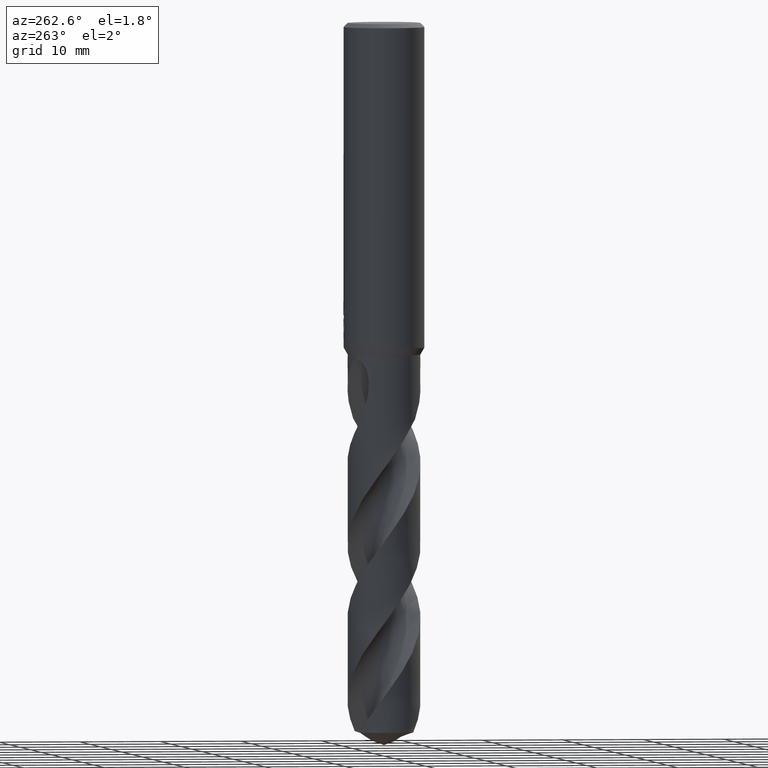
[diagram: clean part render]
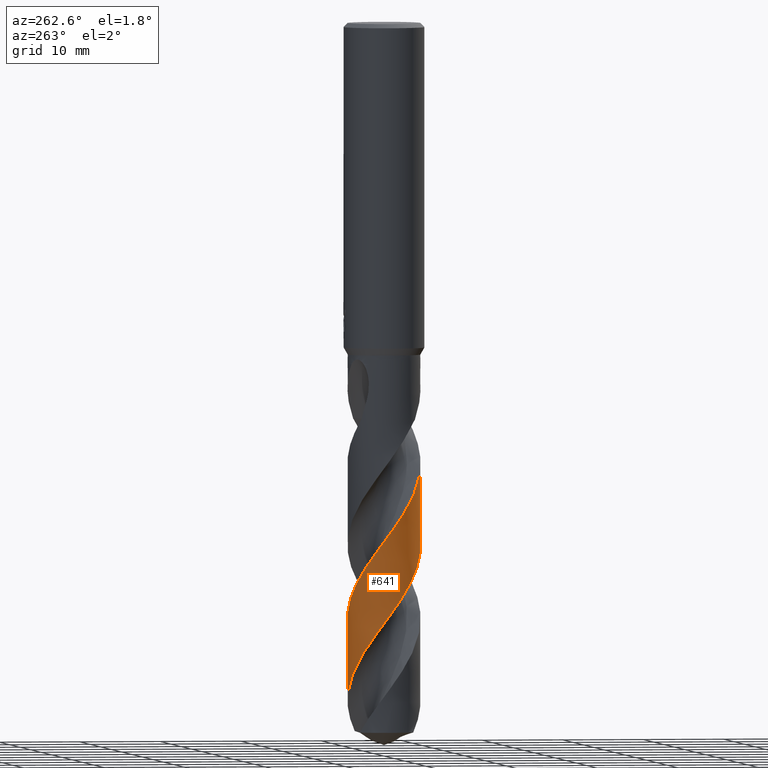
[diagram: same view with one face highlighted and labeled with its STEP entity id]
A machine part, auxiliary view. The second image highlights one B-rep face of the part: STEP entity #641.
In plain terms, the highlighted conical surface has half-angle 0 deg.
Its self-contained STEP definition (entity closure, byte-faithful):
#293=VERTEX_POINT('',#789);
#343=EDGE_CURVE('',#631,#735,#843,.T.);
#455=EDGE_CURVE('',#665,#631,#963,.T.);
#627=EDGE_CURVE('',#735,#293,#1155,.T.);
#631=VERTEX_POINT('',#1159);
#641=ADVANCED_FACE('',(#1170),#1171,.T.);
#665=VERTEX_POINT('',#1198);
#727=EDGE_CURVE('',#293,#665,#1266,.T.);
#735=VERTEX_POINT('',#1274);
#789=CARTESIAN_POINT('',(-4.78452782545262E-013,-4.49992534134538,-53.4953750419703));
#843=B_SPLINE_CURVE_WITH_KNOTS('',3,(#1715,#1716,#1717,#1718,#1719,#1720,#1721,#1722,#1723,#1724,#1725,#1726,#1727,#1728,#1729,#1730,#1731,#1732,#1733,#1734,#1735,#1736,#1737,#1738,#1739,#1740,#1741,#1742,#1743,#1744,#1745,#1746,#1747,#1748,#1749,#1750,#1751,#1752,#1753,#1754,#1755,#1756,#1757,#1758,#1759,#1760,#1761,#1762,#1763,#1764,#1765,#1766,#1767,#1768,#1769,#1770,#1771,#1772,#1773,#1774,#1775,#1776,#1777,#1778,#1779,#1780,#1781,#1782,#1783,#1784,#1785,#1786,#1787,#1788,#1789,#1790,#1791,#1792,#1793,#1794),.UNSPECIFIED.,.F.,.F.,(4,2,2,2,2,2,2,2,2,2,2,2,2,2,2,2,2,2,2,2,2,2,2,2,2,2,2,2,2,2,2,2,2,2,2,2,2,2,2,4),(0.0,2.33680212377957,3.27924067551566,5.45922298406233,6.51468084761761,7.75993380819906,10.2223819340773,10.8330407916629,13.2978420661797,13.8876874497238,16.3592074030605,17.349162844891,19.5602718468744,20.1418046346869,22.6210732071348,23.496812256514,25.9745628110826,26.5889139295122,29.0682129147522,29.6639591988363,32.1502937223343,33.2488865367003,35.4222711966253,35.9610805510369,38.3763465433414,39.6140868550911,40.1277455289277,40.6099100932209,42.4074824584705,43.3430638700968,43.8766262820531,45.7315283011536,46.9512835155706,48.305281477593,48.9765393567973,49.4547912362447,49.8859614607023,50.442557883741,51.5745962522468,53.3377781698529),.UNSPECIFIED.);
#963=LINE('',#3659,#3660);
#1155=LINE('',#4806,#4807);
#1159=CARTESIAN_POINT('',(1.21588158932353E-014,4.49998967546559,-82.6787048212013));
#1170=FACE_OUTER_BOUND('',#4838,.T.);
#1171=CONICAL_SURFACE('',#4839,4.49995,2.20448182881086E-006);
#1198=CARTESIAN_POINT('',(-4.71657272157943E-015,4.49996747261341,-72.6070172730486));
#1266=B_SPLINE_CURVE_WITH_KNOTS('',3,(#5139,#5140,#5141,#5142,#5143,#5144,#5145,#5146,#5147,#5148,#5149,#5150,#5151,#5152,#5153,#5154,#5155,#5156,#5157,#5158,#5159,#5160,#5161,#5162,#5163,#5164,#5165,#5166,#5167,#5168,#5169,#5170,#5171,#5172,#5173,#5174,#5175,#5176,#5177,#5178,#5179,#5180,#5181,#5182,#5183,#5184,#5185,#5186,#5187,#5188,#5189,#5190,#5191,#5192,#5193,#5194,#5195,#5196,#5197,#5198,#5199,#5200,#5201,#5202,#5203,#5204,#5205,#5206,#5207,#5208,#5209,#5210,#5211,#5212,#5213,#5214,#5215,#5216,#5217,#5218,#5219,#5220,#5221,#5222,#5223,#5224,#5225,#5226,#5227,#5228,#5229,#5230),.UNSPECIFIED.,.F.,.F.,(4,2,2,2,2,2,2,2,2,2,2,2,2,2,2,2,2,2,2,2,2,2,2,2,2,2,2,2,2,2,2,2,2,2,2,2,2,2,2,2,2,2,2,2,2,4),(0.0,0.186837903831747,0.303060575486544,0.370177943563527,0.861059292617235,1.03366132974205,1.1444361306066,1.24868724846205,1.38874266653107,1.54454257318178,1.58485242890453,2.16989544355807,2.55907528289923,2.9515630851444,3.37161299936185,4.52186147595583,5.05269922730908,7.48727273301139,8.10399733752969,9.34060571961746,9.48730890678113,11.0891192293209,13.5788625091689,14.8125525260481,16.0436994481211,18.6294355339242,19.0542804417132,20.6879567547197,21.9317961791301,21.9807795358462,24.802878485986,25.2510834182851,26.8041700987059,29.2919276600639,30.525883345021,31.7529372328043,33.6201010355565,34.8491716611566,37.4317258425612,37.8536020730467,39.4823253270607,41.6293292643649,43.2294483616723,44.4325228181478,46.2472490038725,48.071826279848),.UNSPECIFIED.);
#1274=CARTESIAN_POINT('',(-3.5251749755537E-014,-4.49994754214657,-63.566132204404));
#1715=CARTESIAN_POINT('',(3.13168728307313,3.23149110489847,-87.3621339458021));
#1716=CARTESIAN_POINT('',(2.79986246731276,3.55306566640095,-86.7350611161615));
#1717=CARTESIAN_POINT('',(2.41931807309393,3.82268708230373,-86.1100701324407));
#1718=CARTESIAN_POINT('',(1.83521490573001,4.11303866035091,-85.2321782920329));
#1719=CARTESIAN_POINT('',(1.66238672864993,4.1858675261564,-84.9805730812409));
#1720=CARTESIAN_POINT('',(1.07677590188494,4.39068345700471,-84.1441869583712));
#1721=CARTESIAN_POINT('',(0.649912613710216,4.47380377987986,-83.556103020175));
#1722=CARTESIAN_POINT('',(0.00820596892831227,4.50486006252403,-82.6893897186134));
#1723=CARTESIAN_POINT('',(-0.201551838525929,4.50035240013233,-82.4076885816891));
#1724=CARTESIAN_POINT('',(-0.656338477719899,4.45872265768239,-81.7913076280781));
#1725=CARTESIAN_POINT('',(-0.899759713002763,4.41598606174388,-81.4559597118791));
#1726=CARTESIAN_POINT('',(-1.60900419243431,4.23060357095004,-80.4626726154881));
#1727=CARTESIAN_POINT('',(-2.05647264057087,4.03201262037635,-79.8159416198085));
#1728=CARTESIAN_POINT('',(-2.56422063107079,3.69988404570603,-78.9928933459382));
#1729=CARTESIAN_POINT('',(-2.6622839562254,3.62996306032753,-78.8288730259041));
#1730=CARTESIAN_POINT('',(-3.14245992196279,3.25759390881083,-78.0047503269377));
#1731=CARTESIAN_POINT('',(-3.47612275414777,2.89885543339306,-77.3573854387337));
#1732=CARTESIAN_POINT('',(-3.81044267801213,2.3966401227769,-76.5396649092122));
#1733=CARTESIAN_POINT('',(-3.87107699568782,2.29740409898074,-76.3813128306896));
#1734=CARTESIAN_POINT('',(-4.16557102935763,1.77063979067803,-75.5622536163271));
#1735=CARTESIAN_POINT('',(-4.33269859749133,1.30963322557204,-74.9141332539911));
#1736=CARTESIAN_POINT('',(-4.45870752003181,0.638585773960807,-73.9895309654832));
#1737=CARTESIAN_POINT('',(-4.48219750214839,0.444767207797544,-73.7238507890458));
#1738=CARTESIAN_POINT('',(-4.51725135435534,-0.186108605963501,-72.8685592344404));
#1739=CARTESIAN_POINT('',(-4.47793975500949,-0.62273858714686,-72.2872030997307));
#1740=CARTESIAN_POINT('',(-4.34986485190763,-1.15823474869505,-71.5411555064887));
#1741=CARTESIAN_POINT('',(-4.31900576862883,-1.26843951364272,-71.3853530651335));
#1742=CARTESIAN_POINT('',(-4.13486313179622,-1.84121499979803,-70.5684914943904));
#1743=CARTESIAN_POINT('',(-3.91135241412223,-2.27793264539385,-69.9199800395209));
#1744=CARTESIAN_POINT('',(-3.51955768118954,-2.80927833694773,-69.0263261781374));
#1745=CARTESIAN_POINT('',(-3.40962166975117,-2.94172111005351,-68.7920206902992));
#1746=CARTESIAN_POINT('',(-2.96041463255488,-3.42382843495597,-67.8989225115384));
#1747=CARTESIAN_POINT('',(-2.57324029820633,-3.72350383945732,-67.2520858456997));
#1748=CARTESIAN_POINT('',(-2.03985363980248,-4.01286904217065,-66.4289347220988));
#1749=CARTESIAN_POINT('',(-1.93176186406089,-4.06601010315414,-66.2649190472735));
#1750=CARTESIAN_POINT('',(-1.37612452684524,-4.31195852432005,-65.4408826805211));
#1751=CARTESIAN_POINT('',(-0.90204816812503,-4.43540219332056,-64.7935880461949));
#1752=CARTESIAN_POINT('',(-0.300933059100268,-4.49139792613305,-63.9752865141356));
#1753=CARTESIAN_POINT('',(-0.184344989660074,-4.49768614146036,-63.8162966180381));
#1754=CARTESIAN_POINT('',(0.419597046200159,-4.5067589413106,-62.9965458077784));
#1755=CARTESIAN_POINT('',(0.90471495347332,-4.43493967238463,-62.3483412336419));
#1756=CARTESIAN_POINT('',(1.57434769598337,-4.2210567706603,-61.3963771170168));
#1757=CARTESIAN_POINT('',(1.77463719559898,-4.14085889628439,-61.1029747277798));
#1758=CARTESIAN_POINT('',(2.35259428818417,-3.85966710901864,-60.2337434581259));
#1759=CARTESIAN_POINT('',(2.70760906428429,-3.61935756054024,-59.6649545191824));
#1760=CARTESIAN_POINT('',(3.10134885916392,-3.26224204947324,-58.9440123426183));
#1761=CARTESIAN_POINT('',(3.17687734235426,-3.18872874867644,-58.8004275070547));
#1762=CARTESIAN_POINT('',(3.57655471518116,-2.77143677296827,-58.015712207655));
#1763=CARTESIAN_POINT('',(3.84787318018934,-2.38066697466544,-57.3859510762865));
#1764=CARTESIAN_POINT('',(4.15891917637846,-1.73542002685983,-56.4181523308605));
#1765=CARTESIAN_POINT('',(4.24635773626587,-1.50884866098144,-56.0888337656626));
#1766=CARTESIAN_POINT('',(4.34367496789276,-1.17982395982694,-55.6247336876066));
#1767=CARTESIAN_POINT('',(4.36897565848088,-1.08238239713843,-55.4887476319327));
#1768=CARTESIAN_POINT('',(4.41165487526204,-0.891959406216048,-55.224911510925));
#1769=CARTESIAN_POINT('',(4.42940716378236,-0.79914463540748,-55.0970814172397));
#1770=CARTESIAN_POINT('',(4.49945327728565,-0.358117816268624,-54.4931126875725));
#1771=CARTESIAN_POINT('',(4.51371200920096,-0.00482608144987512,-54.0190920094939));
#1772=CARTESIAN_POINT('',(4.47241709698118,0.529599547149978,-53.2953507262848));
#1773=CARTESIAN_POINT('',(4.44713638938276,0.7111010213112,-53.0484010536984));
#1774=CARTESIAN_POINT('',(4.39039322306057,0.992275846143304,-52.6584419094299));
#1775=CARTESIAN_POINT('',(4.36638825589952,1.09305539956104,-52.5166987850063));
#1776=CARTESIAN_POINT('',(4.24297826211391,1.54176907233344,-51.8837695165584));
#1777=CARTESIAN_POINT('',(4.12615192870768,1.80517760819183,-51.5058887469233));
#1778=CARTESIAN_POINT('',(3.9912032083572,2.08194598803022,-51.1007770420934));
#1779=CARTESIAN_POINT('',(3.93395325196989,2.18800413751013,-50.9399713530244));
#1780=CARTESIAN_POINT('',(3.80656122285731,2.40347732009148,-50.5956510693471));
#1781=CARTESIAN_POINT('',(3.73641468979566,2.51076376178733,-50.4135005836646));
#1782=CARTESIAN_POINT('',(3.62845167339048,2.66221715696406,-50.134826998702));
#1783=CARTESIAN_POINT('',(3.60602314673074,2.69218952699867,-50.0756692768476));
#1784=CARTESIAN_POINT('',(3.55928110511421,2.75350775482859,-49.9595726655125));
#1785=CARTESIAN_POINT('',(3.53919585368778,2.77929186547049,-49.9117580362108));
#1786=CARTESIAN_POINT('',(3.49963551523803,2.82890642719138,-49.8216034138861));
#1787=CARTESIAN_POINT('',(3.48032867979909,2.85263671174505,-49.7792650025317));
#1788=CARTESIAN_POINT('',(3.43472804880159,2.90749228606639,-49.6830938034196));
#1789=CARTESIAN_POINT('',(3.40808718646852,2.93869876889729,-49.6296090276081));
#1790=CARTESIAN_POINT('',(3.32414024439209,3.03423948121285,-49.4692304797332));
#1791=CARTESIAN_POINT('',(3.26393081134946,3.09910571181624,-49.3649055947374));
#1792=CARTESIAN_POINT('',(3.09855913747152,3.26629480918501,-49.1045416571574));
#1793=CARTESIAN_POINT('',(2.98826811922116,3.36809622247408,-48.9540372366393));
#1794=CARTESIAN_POINT('',(2.86743909114319,3.4680005995758,-48.809));
#3659=CARTESIAN_POINT('',(-5.51359106450275E-016,4.49995,-64.6810669729011));
#3660=VECTOR('',#5442,1.0);
#4806=CARTESIAN_POINT('',(5.50774365926326E-016,-4.49995,-64.6810669729011));
#4807=VECTOR('',#5689,1.0);
#4838=EDGE_LOOP('',(#5701,#5702,#5703,#5704));
#4839=AXIS2_PLACEMENT_3D('',#5705,#5706,#5707);
#5139=CARTESIAN_POINT('',(3.12778793643585,-3.23514724931657,-48.809));
#5140=CARTESIAN_POINT('',(3.10234241226861,-3.2597485134134,-48.8602446531091));
#5141=CARTESIAN_POINT('',(3.07653912186477,-3.28411598623639,-48.9114458345507));
#5142=CARTESIAN_POINT('',(3.03398033534745,-3.32335597504066,-48.9943801693259));
#5143=CARTESIAN_POINT('',(3.01751085052991,-3.33831798374036,-49.0261203190196));
#5144=CARTESIAN_POINT('',(2.99124463753005,-3.36182427076173,-49.0761411720244));
#5145=CARTESIAN_POINT('',(2.98157551340447,-3.37040296023585,-49.0944295869058));
#5146=CARTESIAN_POINT('',(2.90068589802508,-3.44154702743137,-49.2463568402421));
#5147=CARTESIAN_POINT('',(2.82772616144898,-3.50181627347509,-49.3764496733003));
#5148=CARTESIAN_POINT('',(2.72342923035437,-3.58236770599321,-49.5536717763633));
#5149=CARTESIAN_POINT('',(2.69597691173728,-3.60307552424029,-49.5995728526205));
#5150=CARTESIAN_POINT('',(2.65029510809367,-3.63671278882721,-49.6748955758751));
#5151=CARTESIAN_POINT('',(2.63231258703299,-3.64975049493095,-49.7042845692948));
#5152=CARTESIAN_POINT('',(2.59714782310976,-3.67484910160729,-49.761312475187));
#5153=CARTESIAN_POINT('',(2.57999781226635,-3.68691014689375,-49.7889250000126));
#5154=CARTESIAN_POINT('',(2.53956443353887,-3.71492443083386,-49.8536308174169));
#5155=CARTESIAN_POINT('',(2.51622719377732,-3.73077114376126,-49.8906754415572));
#5156=CARTESIAN_POINT('',(2.46660676815204,-3.76378722329745,-49.9689853235274));
#5157=CARTESIAN_POINT('',(2.44032896178354,-3.78087731937628,-50.0101912737615));
#5158=CARTESIAN_POINT('',(2.40707712761745,-3.80201331581262,-50.062163120583));
#5159=CARTESIAN_POINT('',(2.40030885817742,-3.80628994495357,-50.0727352217347));
#5160=CARTESIAN_POINT('',(2.2939163579911,-3.8731159137253,-50.2389035488026));
#5161=CARTESIAN_POINT('',(2.19266494943079,-3.93126938687994,-50.3963700191688));
#5162=CARTESIAN_POINT('',(2.02201022188871,-4.02078009317546,-50.6579561891424));
#5163=CARTESIAN_POINT('',(1.95299764078976,-4.05474758462396,-50.7627539184772));
#5164=CARTESIAN_POINT('',(1.81283564167891,-4.11933364243836,-50.9729718410664));
#5165=CARTESIAN_POINT('',(1.74152600437987,-4.14998903566836,-51.0786114782517));
#5166=CARTESIAN_POINT('',(1.59209339050001,-4.20968444480941,-51.2968461358847));
#5167=CARTESIAN_POINT('',(1.51419199766571,-4.23832924843354,-51.4087995667896));
#5168=CARTESIAN_POINT('',(1.21933659926273,-4.33756213876697,-51.8284392733073));
#5169=CARTESIAN_POINT('',(0.998312206256321,-4.39368353112767,-52.1342607209871));
#5170=CARTESIAN_POINT('',(0.670699935154438,-4.45089878331663,-52.5839118429881));
#5171=CARTESIAN_POINT('',(0.566734770698655,-4.46532384419417,-52.7261188322472));
#5172=CARTESIAN_POINT('',(-0.015859331358982,-4.52551586398616,-53.5196625242601));
#5173=CARTESIAN_POINT('',(-0.499315087579334,-4.49798384269997,-54.1646464941883));
#5174=CARTESIAN_POINT('',(-1.08860449423433,-4.3679714598583,-54.9805245455819));
#5175=CARTESIAN_POINT('',(-1.20658022746112,-4.33686468230632,-55.1454223562342));
#5176=CARTESIAN_POINT('',(-1.55683752689931,-4.22911502095645,-55.6410268116212));
#5177=CARTESIAN_POINT('',(-1.78435604317553,-4.13827297463188,-55.9710168572264));
#5178=CARTESIAN_POINT('',(-2.02940853587046,-4.0164322333277,-56.3408101746038));
#5179=CARTESIAN_POINT('',(-2.05526581576621,-4.00326240891239,-56.3800191826851));
#5180=CARTESIAN_POINT('',(-2.36194344377077,-3.84330859286574,-56.8475808059884));
#5181=CARTESIAN_POINT('',(-2.62668252489288,-3.66747609797318,-57.2757418977318));
#5182=CARTESIAN_POINT('',(-3.25007781268484,-3.15104330349848,-58.3700081288985));
#5183=CARTESIAN_POINT('',(-3.57511026528807,-2.77673772047888,-59.0302284910581));
#5184=CARTESIAN_POINT('',(-3.96073659467425,-2.14976793802594,-60.0264824816359));
#5185=CARTESIAN_POINT('',(-4.07148893481931,-1.93185787653775,-60.3559525410837));
#5186=CARTESIAN_POINT('',(-4.25644617912232,-1.48038184380875,-61.0149838539266));
#5187=CARTESIAN_POINT('',(-4.33031292198008,-1.24786429911464,-61.3430648392488));
#5188=CARTESIAN_POINT('',(-4.49985092902717,-0.512237815639434,-62.3642127084475));
#5189=CARTESIAN_POINT('',(-4.52897578676987,0.00241829073285249,-63.0514406722331));
#5190=CARTESIAN_POINT('',(-4.461278459668,0.59464607277115,-63.8564808980749));
#5191=CARTESIAN_POINT('',(-4.44938892507137,0.677893694558919,-63.9700388130362));
#5192=CARTESIAN_POINT('',(-4.38053526630849,1.0793224903605,-64.5208242308006));
#5193=CARTESIAN_POINT('',(-4.29170124064413,1.3912011302957,-64.9575881163032));
#5194=CARTESIAN_POINT('',(-4.07766271978543,1.919079020307,-65.7274692516107));
#5195=CARTESIAN_POINT('',(-3.96655763097424,2.13931372454043,-66.0592841615003));
#5196=CARTESIAN_POINT('',(-3.83290156922936,2.35765643188007,-66.4050955329178));
#5197=CARTESIAN_POINT('',(-3.8278116313329,2.36591136939241,-66.4181972610519));
#5198=CARTESIAN_POINT('',(-3.52795236440081,2.84872795811529,-67.1861260412442));
#5199=CARTESIAN_POINT('',(-3.14712150153651,3.26462505850883,-67.9369184007191));
#5200=CARTESIAN_POINT('',(-2.62884198170034,3.6533142629093,-68.8117662881481));
#5201=CARTESIAN_POINT('',(-2.55627973343941,3.7044489876637,-68.9315894262456));
#5202=CARTESIAN_POINT('',(-2.22579775530522,3.92301080232299,-69.467250788053));
#5203=CARTESIAN_POINT('',(-1.95256905945561,4.06591958825818,-69.8828290205785));
#5204=CARTESIAN_POINT('',(-1.20935435492903,4.36231565426583,-70.964557619747));
#5205=CARTESIAN_POINT('',(-0.725042558754533,4.46837145298939,-71.6248832081504));
#5206=CARTESIAN_POINT('',(0.0104265006090731,4.50657537757854,-72.6215065506577));
#5207=CARTESIAN_POINT('',(0.25504967922626,4.49938148309297,-72.9512969361786));
#5208=CARTESIAN_POINT('',(0.739645071562392,4.44541961562831,-73.6098704518618));
#5209=CARTESIAN_POINT('',(0.978542541252218,4.39899764687424,-73.9372053494915));
#5210=CARTESIAN_POINT('',(1.56836263261244,4.23397954719072,-74.765802719679));
#5211=CARTESIAN_POINT('',(1.91089127333057,4.09086268414897,-75.264602198799));
#5212=CARTESIAN_POINT('',(2.44364722018136,3.78651353733996,-76.0933653209686));
#5213=CARTESIAN_POINT('',(2.64485593508061,3.64879953552928,-76.4212853202528));
#5214=CARTESIAN_POINT('',(3.23108410995579,3.17353982517947,-77.4421866626456));
#5215=CARTESIAN_POINT('',(3.57078632474797,2.78592182135669,-78.1292889918419));
#5216=CARTESIAN_POINT('',(3.88170243000453,2.27798422224122,-78.9335594491094));
#5217=CARTESIAN_POINT('',(3.92334200551249,2.20549439294468,-79.0464461404265));
#5218=CARTESIAN_POINT('',(4.11577333256719,1.8477920698858,-79.5957196018109));
#5219=CARTESIAN_POINT('',(4.23766527825237,1.54797266578176,-80.0316704434922));
#5220=CARTESIAN_POINT('',(4.44345545797061,0.828610915453142,-81.0430254629626));
#5221=CARTESIAN_POINT('',(4.50183350626,0.405154597912542,-81.6142427820767));
#5222=CARTESIAN_POINT('',(4.49853597064578,-0.336878111662014,-82.6183231622192));
#5223=CARTESIAN_POINT('',(4.46366260851437,-0.652927245786916,-83.0457186044058));
#5224=CARTESIAN_POINT('',(4.34472018329143,-1.19593158420669,-83.7962782803493));
#5225=CARTESIAN_POINT('',(4.27527199922191,-1.42433172311235,-84.1175929764132));
#5226=CARTESIAN_POINT('',(4.05672418246192,-1.98041191055385,-84.9265094759404));
#5227=CARTESIAN_POINT('',(3.88561571511913,-2.29813557751629,-85.4118124191682));
#5228=CARTESIAN_POINT('',(3.46992966972464,-2.88798434108698,-86.3866796707701));
#5229=CARTESIAN_POINT('',(3.22660906614556,-3.15751435467596,-86.8733751460479));
#5230=CARTESIAN_POINT('',(2.95363779304501,-3.394999821428,-87.362133945802));
#5442=DIRECTION('',(-2.69962245444557E-022,2.20448182880907E-006,-0.99999999999757));
#5689=DIRECTION('',(-2.69962245444557E-022,2.20448182880907E-006,0.99999999999757));
#5701=ORIENTED_EDGE('',*,*,#455,.T.);
#5702=ORIENTED_EDGE('',*,*,#343,.T.);
#5703=ORIENTED_EDGE('',*,*,#627,.T.);
#5704=ORIENTED_EDGE('',*,*,#727,.T.);
#5705=CARTESIAN_POINT('',(0.0,0.0,-64.6810669729011));
#5706=DIRECTION('',(0.0,-0.0,-1.0));
#5707=DIRECTION('',(0.0,1.0,0.0));